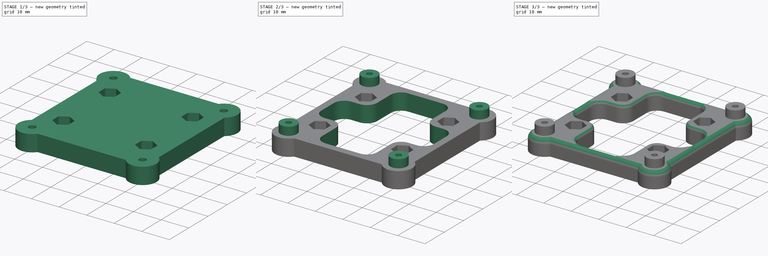
[diagram: build sequence overview — one tinted view per stage of 3, left to right]
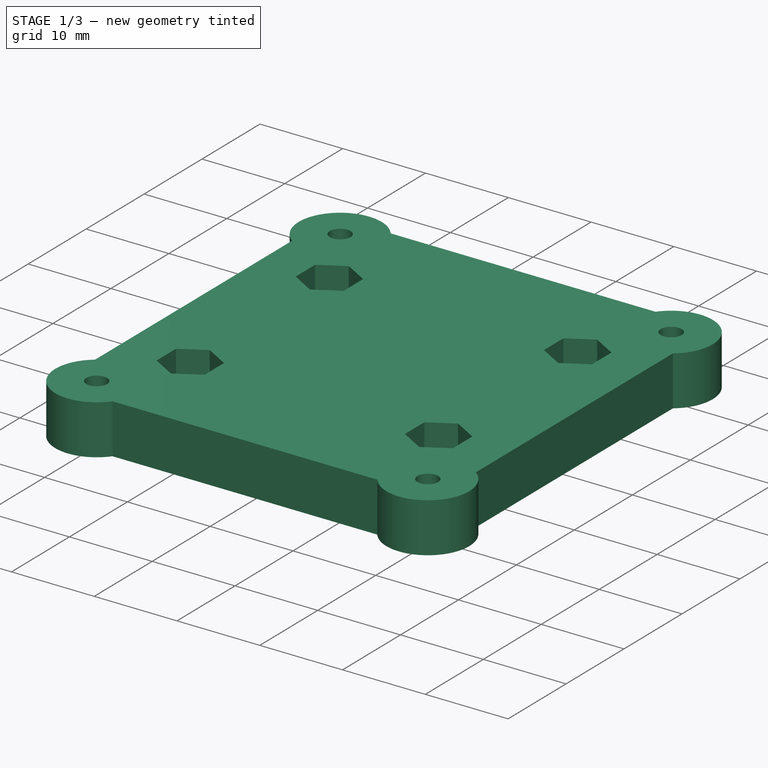
[diagram: stage 1 of 3 — iso view after this stage's code; geometry added in this stage tinted green]
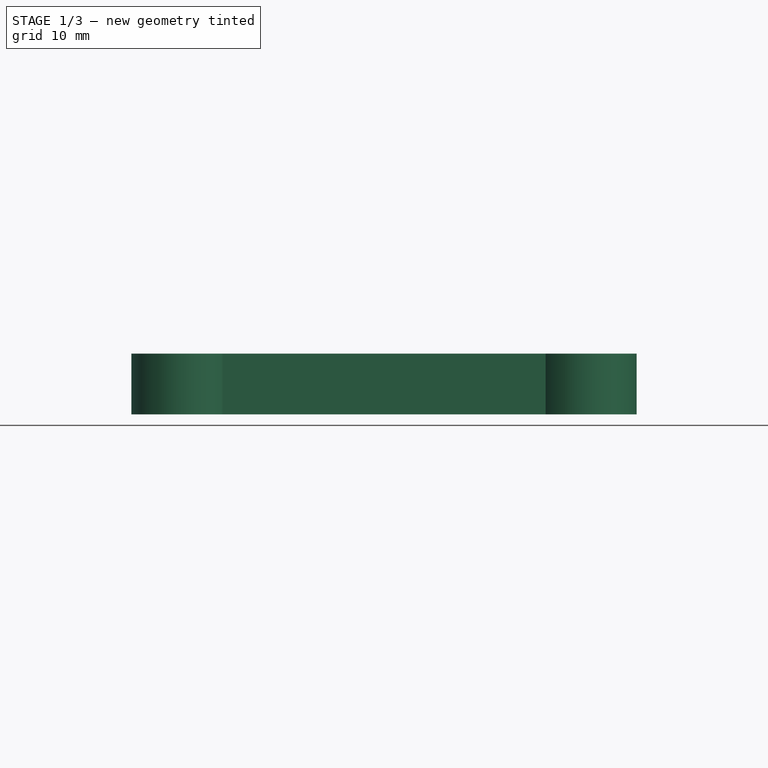
[diagram: stage 1 of 3 — front view after this stage's code; geometry added in this stage tinted green]
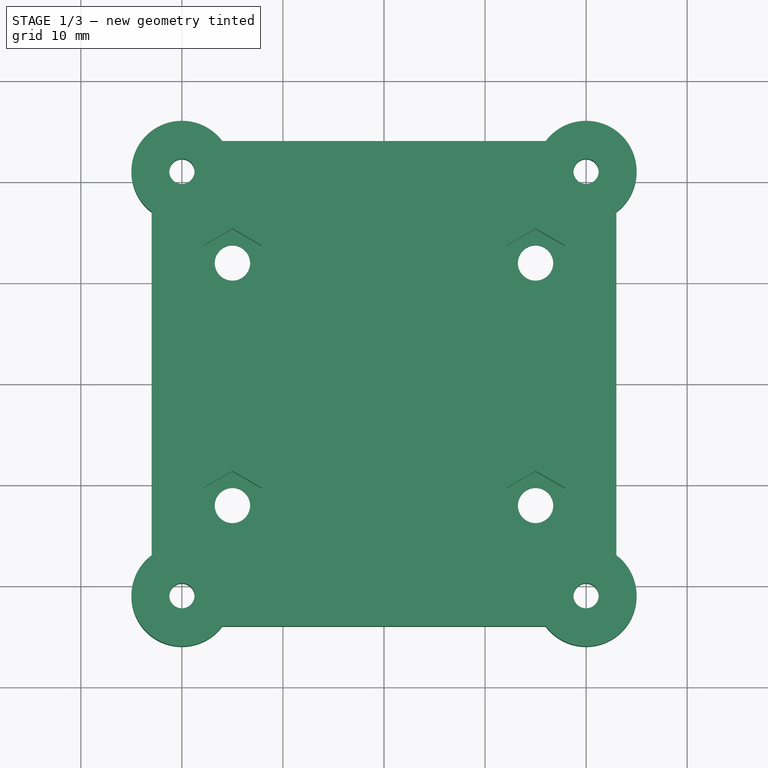
[diagram: stage 1 of 3 — top view after this stage's code; geometry added in this stage tinted green]
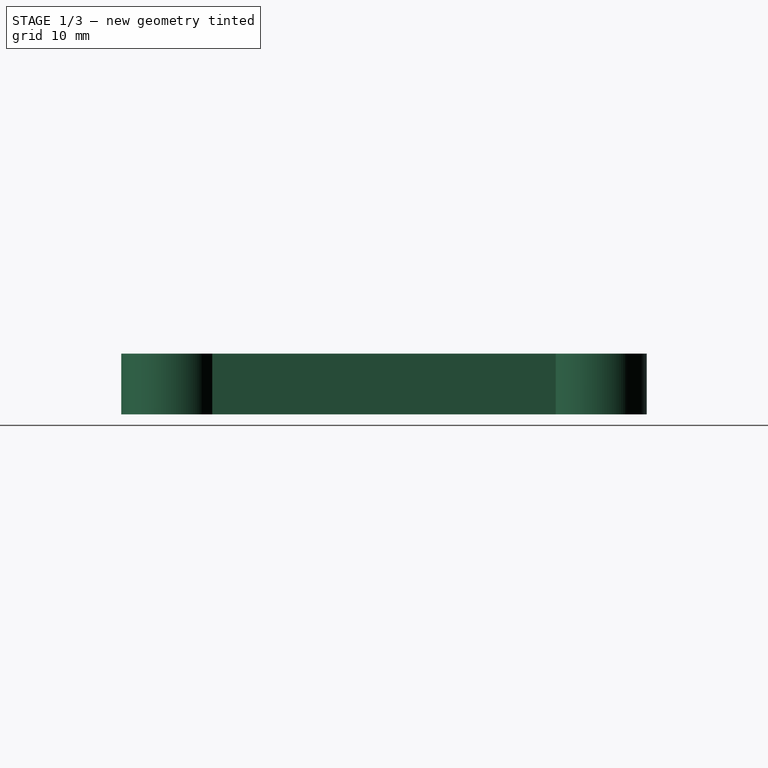
[diagram: stage 1 of 3 — right view after this stage's code; geometry added in this stage tinted green]
FCSTD DOCUMENT  (FreeCAD 0.17R13541 (Git))
Label: OPI-zero_base
License: All rights reserved
LicenseURL: http://en.wikipedia.org/wiki/All_rights_reserved
objects: Sketcher::SketchObject×5, PartDesign::Pocket×3, PartDesign::Pad×2, PartDesign::Fillet×2, PartDesign::Body×1
note: 18 computed .brp shape members not serialized (recipe doc carries the construction recipe); baked Part::Feature solids carry a one-line shape summary decoded from their .brp

FEATURE [Sketcher::SketchObject] Sketch
  MapMode = 5
  Support = -> [XY_Plane]
  sketch-geometry (24):
    g0: LineSegment StartX=-16 StartY=24 StartZ=0 EndX=16 EndY=24 EndZ=0
    g1: LineSegment StartX=23 StartY=17 StartZ=0 EndX=23 EndY=-17 EndZ=0
    g2: Circle CenterX=-20 CenterY=21 CenterZ=0 NormalX=0 NormalY=0 NormalZ=1 AngleXU=0 Radius=1.25
    g3: Circle CenterX=-20 CenterY=-21 CenterZ=0 NormalX=0 NormalY=0 NormalZ=1 AngleXU=0 Radius=1.25
    g4: Circle CenterX=20 CenterY=-21 CenterZ=0 NormalX=0 NormalY=0 NormalZ=1 AngleXU=0 Radius=1.25
    g5: Circle CenterX=20 CenterY=21 CenterZ=0 NormalX=0 NormalY=0 NormalZ=1 AngleXU=0 Radius=1.25
    g6: LineSegment [constr] StartX=-20 StartY=21 StartZ=0 EndX=20 EndY=21 EndZ=0
    g7: LineSegment [constr] StartX=20 StartY=21 StartZ=0 EndX=20 EndY=-21 EndZ=0
    g8: LineSegment [constr] StartX=20 StartY=-21 StartZ=0 EndX=-20 EndY=-21 EndZ=0
    g9: LineSegment [constr] StartX=-20 StartY=-21 StartZ=0 EndX=-20 EndY=21 EndZ=0
    g10: LineSegment [constr] StartX=-15 StartY=12 StartZ=0 EndX=15 EndY=12 EndZ=0
    g11: LineSegment [constr] StartX=15 StartY=12 StartZ=0 EndX=15 EndY=-12 EndZ=0
    g12: LineSegment [constr] StartX=15 StartY=-12 StartZ=0 EndX=-15 EndY=-12 EndZ=0
    g13: LineSegment [constr] StartX=-15 StartY=-12 StartZ=0 EndX=-15 EndY=12 EndZ=0
    g14: Circle CenterX=-15 CenterY=12 CenterZ=0 NormalX=0 NormalY=0 NormalZ=1 AngleXU=0 Radius=1.75
    g15: Circle CenterX=-15 CenterY=-12 CenterZ=0 NormalX=0 NormalY=0 NormalZ=1 AngleXU=0 Radius=1.75
    g16: Circle CenterX=15 CenterY=12 CenterZ=0 NormalX=0 NormalY=0 NormalZ=1 AngleXU=0 Radius=1.75
    g17: Circle CenterX=15 CenterY=-12 CenterZ=0 NormalX=0 NormalY=0 NormalZ=1 AngleXU=0 Radius=1.75
    g18: ArcOfCircle CenterX=-20 CenterY=21 CenterZ=0 NormalX=0 NormalY=0 NormalZ=1 AngleXU=0 Radius=5 StartAngle=0.643501 EndAngle=4.06889
    g19: ArcOfCircle CenterX=20 CenterY=21 CenterZ=0 NormalX=0 NormalY=0 NormalZ=1 AngleXU=0 Radius=5 StartAngle=5.35589 EndAngle=8.78128
    g20: ArcOfCircle CenterX=-20 CenterY=-21 CenterZ=0 NormalX=0 NormalY=0 NormalZ=1 AngleXU=0 Radius=5 StartAngle=2.2143 EndAngle=5.63968
    g21: ArcOfCircle CenterX=20 CenterY=-21 CenterZ=0 NormalX=0 NormalY=0 NormalZ=1 AngleXU=0 Radius=5 StartAngle=3.78509 EndAngle=7.21048
    g22: LineSegment StartX=-23 StartY=-17 StartZ=0 EndX=-23 EndY=17 EndZ=0
    g23: LineSegment StartX=-16 StartY=-24 StartZ=0 EndX=16 EndY=-24 EndZ=0
  constraints (62):
    c: Horizontal(g0)
    c: Vertical(g1)
    c: Coincident(g6,g7)
    c: Coincident(g7,g8)
    c: Coincident(g8,g9)
    c: Coincident(g9,g6)
    c: Vertical(g7)
    c: Coincident(g6,g2)
    c: Coincident(g7,g4)
    c: Coincident(g3,g8)
    c: Coincident(g6,g5)
    c: Equal(g2,g3)
    c: Equal(g3,g4)
    c: Equal(g4,g5)
    c: Radius(g2) = 1.25
    c: Symmetric(g2,g5,g-2)
    c: Symmetric(g2,g3,g-1)
    c: Coincident(g10,g11)
    c: Coincident(g11,g12)
    c: Coincident(g12,g13)
    c: Coincident(g13,g10)
    c: Horizontal(g12)
    c: Vertical(g13)
    c: Coincident(g14,g10)
    c: Coincident(g15,g12)
    c: Coincident(g16,g10)
    c: Coincident(g17,g11)
    c: Equal(g14,g15)
    c: Equal(g15,g17)
    c: Equal(g17,g16)
    c: Symmetric(g10,g11,g-1)
    c: Symmetric(g10,g10,g-2)
    c: DistanceX(g10,g10) = 30
    c: DistanceY(g11,g11) = 24
    c: Radius(g16) = 1.75
    c: Coincident(g19,g5)
    c: Coincident(g20,g3)
    c: Coincident(g21,g4)
    c: Radius(g19) = 5
    c: Coincident(g18,g0)
    c: Coincident(g22,g18)
    c: Coincident(g1,g19)
    c: Coincident(g0,g19)
    c: Coincident(g18,g2)
    c: Vertical(g22)
    c: Coincident(g20,g22)
    c: Coincident(g1,g21)
    c: Equal(g9,g7)
    c: Equal(g13,g11)
    c: Equal(g10,g12)
    c: DistanceX(g20,g1) = 46
    c: DistanceY(g20,g0) = 48
    c: DistanceY(g4,g5) = 42
    c: DistanceX(g2,g5) = 40
    c: Equal(g22,g1)
    c: DistanceX(g20,g-1) = 23
    c: DistanceY(g20,g-1) = 24
    c: Equal(g20,g21)
    c: Equal(g21,g19)
    c: Coincident(g23,g20)
    c: Coincident(g23,g21)
    c: Horizontal(g23)
FEATURE [PartDesign::Pad] Pad
  Length = 6
  Length2 = 100
  Profile = -> Sketch
  Type = 0
FEATURE [Sketcher::SketchObject] Sketch001
  MapMode = 5
  Placement = pos=(0,0,6) rot=(0,0,1;0rad)
  Support = -> [Pad]
  sketch-geometry (32):
    g0: LineSegment StartX=-12.1 StartY=13.6743 StartZ=0 EndX=-15 EndY=15.3486 EndZ=0
    g1: LineSegment StartX=-15 StartY=15.3486 StartZ=0 EndX=-17.9 EndY=13.6743 EndZ=0
    g2: LineSegment StartX=-17.9 StartY=13.6743 StartZ=0 EndX=-17.9 EndY=10.3257 EndZ=0
    g3: LineSegment StartX=-17.9 StartY=10.3257 StartZ=0 EndX=-15 EndY=8.65137 EndZ=0
    g4: LineSegment StartX=-15 StartY=8.65137 StartZ=0 EndX=-12.1 EndY=10.3257 EndZ=0
    g5: LineSegment StartX=-12.1 StartY=10.3257 StartZ=0 EndX=-12.1 EndY=13.6743 EndZ=0
    g6: Circle [constr] CenterX=-15 CenterY=12 CenterZ=0 NormalX=0 NormalY=0 NormalZ=1 AngleXU=0 Radius=3.34863
    g7: LineSegment StartX=17.9 StartY=13.6743 StartZ=0 EndX=15 EndY=15.3486 EndZ=0
    g8: LineSegment StartX=15 StartY=15.3486 StartZ=0 EndX=12.1 EndY=13.6743 EndZ=0
    g9: LineSegment StartX=12.1 StartY=13.6743 StartZ=0 EndX=12.1 EndY=10.3257 EndZ=0
    g10: LineSegment StartX=12.1 StartY=10.3257 StartZ=0 EndX=15 EndY=8.65137 EndZ=0
    g11: LineSegment StartX=15 StartY=8.65137 StartZ=0 EndX=17.9 EndY=10.3257 EndZ=0
    g12: LineSegment StartX=17.9 StartY=10.3257 StartZ=0 EndX=17.9 EndY=13.6743 EndZ=0
    g13: Circle [constr] CenterX=15 CenterY=12 CenterZ=0 NormalX=0 NormalY=0 NormalZ=1 AngleXU=0 Radius=3.34863
    g14: LineSegment StartX=-12.1 StartY=-10.3257 StartZ=0 EndX=-15 EndY=-8.65137 EndZ=0
    g15: LineSegment StartX=-15 StartY=-8.65137 StartZ=0 EndX=-17.9 EndY=-10.3257 EndZ=0
    g16: LineSegment StartX=-17.9 StartY=-10.3257 StartZ=0 EndX=-17.9 EndY=-13.6743 EndZ=0
    g17: LineSegment StartX=-17.9 StartY=-13.6743 StartZ=0 EndX=-15 EndY=-15.3486 EndZ=0
    g18: LineSegment StartX=-15 StartY=-15.3486 StartZ=0 EndX=-12.1 EndY=-13.6743 EndZ=0
    g19: LineSegment StartX=-12.1 StartY=-13.6743 StartZ=0 EndX=-12.1 EndY=-10.3257 EndZ=0
    g20: Circle [constr] CenterX=-15 CenterY=-12 CenterZ=0 NormalX=0 NormalY=0 NormalZ=1 AngleXU=0 Radius=3.34863
    g21: LineSegment StartX=17.9 StartY=-10.3257 StartZ=0 EndX=15 EndY=-8.65137 EndZ=0
    g22: LineSegment StartX=15 StartY=-8.65137 StartZ=0 EndX=12.1 EndY=-10.3257 EndZ=0
    g23: LineSegment StartX=12.1 StartY=-10.3257 StartZ=0 EndX=12.1 EndY=-13.6743 EndZ=0
    g24: LineSegment StartX=12.1 StartY=-13.6743 StartZ=0 EndX=15 EndY=-15.3486 EndZ=0
    g25: LineSegment StartX=15 StartY=-15.3486 StartZ=0 EndX=17.9 EndY=-13.6743 EndZ=0
    g26: LineSegment StartX=17.9 StartY=-13.6743 StartZ=0 EndX=17.9 EndY=-10.3257 EndZ=0
    g27: Circle [constr] CenterX=15 CenterY=-12 CenterZ=0 NormalX=0 NormalY=0 NormalZ=1 AngleXU=0 Radius=3.34863
    g28: LineSegment [constr] StartX=-15 StartY=12 StartZ=0 EndX=15 EndY=12 EndZ=0
    g29: LineSegment [constr] StartX=15 StartY=12 StartZ=0 EndX=15 EndY=-12 EndZ=0
    g30: LineSegment [constr] StartX=15 StartY=-12 StartZ=0 EndX=-15 EndY=-12 EndZ=0
    g31: LineSegment [constr] StartX=-15 StartY=-12 StartZ=0 EndX=-15 EndY=12 EndZ=0
  constraints (76):
    c: Coincident(g0,g1)
    c: Coincident(g1,g2)
    c: Coincident(g2,g3)
    c: Coincident(g3,g4)
    c: Coincident(g4,g5)
    c: Coincident(g5,g0)
    c: Equal(g0, g1-g5) x5
    c: PointOnObject(g0,g6)
    c: PointOnObject(g1,g6)
    c: PointOnObject(g2,g6)
    c: PointOnObject(g3,g6)
    c: PointOnObject(g4,g6)
    c: PointOnObject(g5,g6)
    c: Coincident(g7,g8)
    c: Coincident(g8,g9)
    c: Coincident(g9,g10)
    c: Coincident(g10,g11)
    c: Coincident(g11,g12)
    c: Coincident(g12,g7)
    c: Equal(g7, g8-g12) x5
    c: PointOnObject(g7,g13)
    c: PointOnObject(g8,g13)
    c: PointOnObject(g9,g13)
    c: PointOnObject(g10,g13)
    c: PointOnObject(g11,g13)
    c: PointOnObject(g12,g13)
    c: Coincident(g14,g15)
    c: Coincident(g15,g16)
    c: Coincident(g16,g17)
    c: Coincident(g17,g18)
    c: Coincident(g18,g19)
    c: Coincident(g19,g14)
    c: Equal(g14, g15-g19) x5
    c: PointOnObject(g14,g20)
    c: PointOnObject(g15,g20)
    c: PointOnObject(g16,g20)
    c: PointOnObject(g17,g20)
    c: PointOnObject(g18,g20)
    c: PointOnObject(g19,g20)
    c: Coincident(g21,g22)
    c: Coincident(g22,g23)
    c: Coincident(g23,g24)
    c: Coincident(g24,g25)
    c: Coincident(g25,g26)
    c: Coincident(g26,g21)
    c: Equal(g21, g22-g26) x5
    c: PointOnObject(g21,g27)
    c: PointOnObject(g22,g27)
    c: PointOnObject(g23,g27)
    c: PointOnObject(g24,g27)
    c: PointOnObject(g25,g27)
    c: PointOnObject(g26,g27)
    c: Equal(g20,g6)
    c: Equal(g6,g13)
    c: Equal(g13,g27)
    c: Coincident(g28,g29)
    c: Coincident(g29,g30)
    c: Coincident(g30,g31)
    c: Coincident(g31,g28)
    c: Horizontal(g28)
    c: Horizontal(g30)
    c: Vertical(g29)
    c: Vertical(g31)
    c: Coincident(g28,g6)
    c: Coincident(g29,g27)
    c: Coincident(g20,g30)
    c: Coincident(g13,g28)
    c: DistanceX(g28,g28) = 30
    c: DistanceY(g29,g29) = 24
    c: Symmetric(g27,g13,g-1)
    c: Symmetric(g6,g13,g-2)
    c: Vertical(g19)
    c: Vertical(g26)
    c: Vertical(g12)
    c: Vertical(g5)
    c: DistanceX(g9,g11) = 5.8
FEATURE [PartDesign::Pocket] Pocket
  BaseFeature = -> Pad
  Length = 4
  Length2 = 100
  Profile = -> Sketch001
  Type = 0
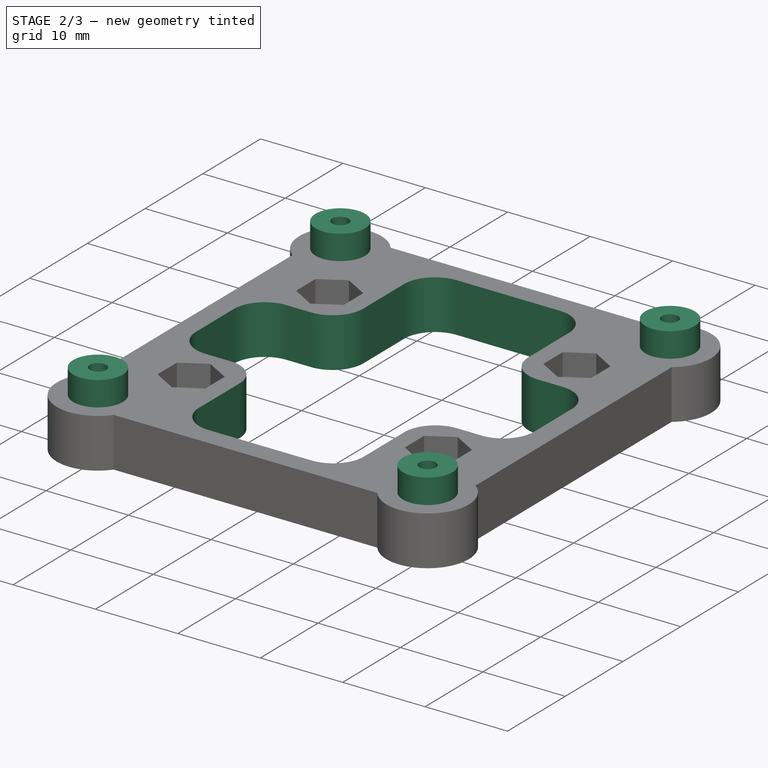
[diagram: stage 2 of 3 — iso view after this stage's code; geometry added in this stage tinted green]
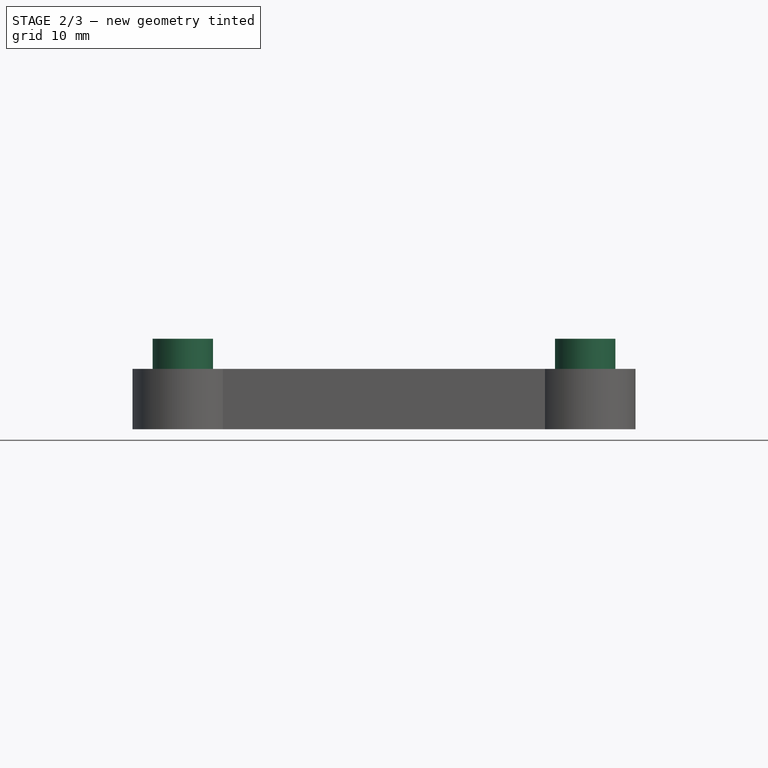
[diagram: stage 2 of 3 — front view after this stage's code; geometry added in this stage tinted green]
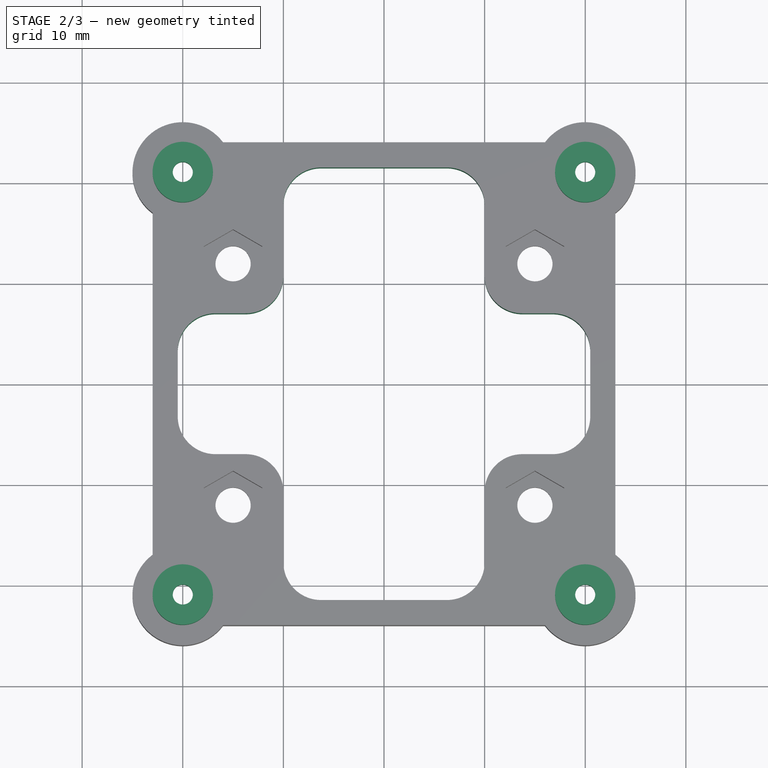
[diagram: stage 2 of 3 — top view after this stage's code; geometry added in this stage tinted green]
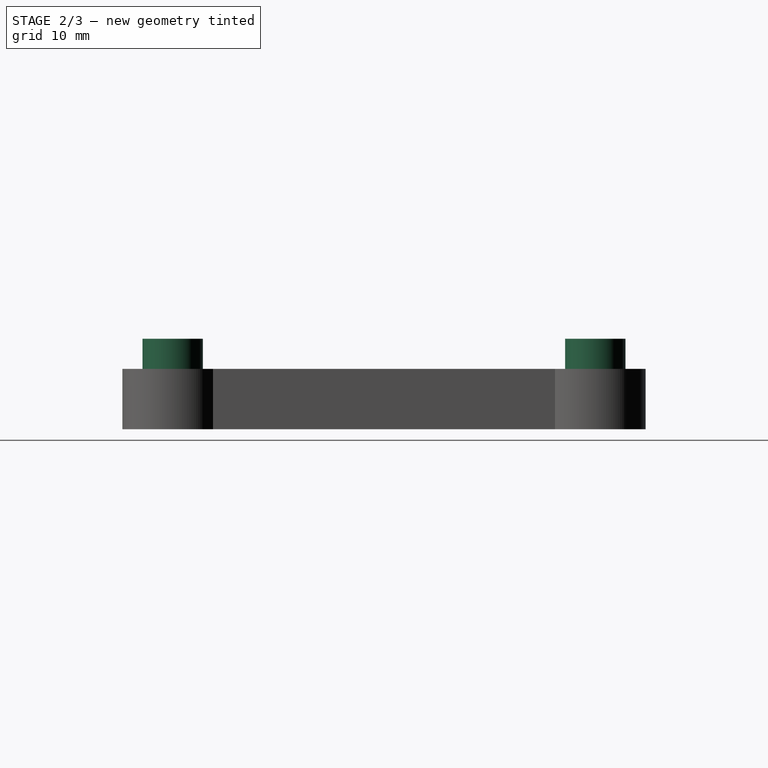
[diagram: stage 2 of 3 — right view after this stage's code; geometry added in this stage tinted green]
FEATURE [Sketcher::SketchObject] Sketch002
  MapMode = 5
  Placement = pos=(0,0,0) rot=(1,0,0;3.14159rad)
  Support = -> [Pocket]
  sketch-geometry (32):
    g0: LineSegment [constr] StartX=-20 StartY=21 StartZ=0 EndX=20 EndY=21 EndZ=0
    g1: LineSegment [constr] StartX=20 StartY=21 StartZ=0 EndX=20 EndY=-21 EndZ=0
    g2: LineSegment [constr] StartX=20 StartY=-21 StartZ=0 EndX=-20 EndY=-21 EndZ=0
    g3: LineSegment [constr] StartX=-20 StartY=-21 StartZ=0 EndX=-20 EndY=21 EndZ=0
    g4: LineSegment StartX=-22.9 StartY=19.3257 StartZ=0 EndX=-20 EndY=17.6514 EndZ=0
    g5: LineSegment StartX=-20 StartY=17.6514 StartZ=0 EndX=-17.1 EndY=19.3257 EndZ=0
    g6: LineSegment StartX=-17.1 StartY=19.3257 StartZ=0 EndX=-17.1 EndY=22.6743 EndZ=0
    g7: LineSegment StartX=-17.1 StartY=22.6743 StartZ=0 EndX=-20 EndY=24.3486 EndZ=0
    g8: LineSegment StartX=-20 StartY=24.3486 StartZ=0 EndX=-22.9 EndY=22.6743 EndZ=0
    g9: LineSegment StartX=-22.9 StartY=22.6743 StartZ=0 EndX=-22.9 EndY=19.3257 EndZ=0
    g10: Circle [constr] CenterX=-20 CenterY=21 CenterZ=0 NormalX=0 NormalY=0 NormalZ=1 AngleXU=0 Radius=3.34863
    g11: LineSegment StartX=20 StartY=17.6514 StartZ=0 EndX=22.9 EndY=19.3257 EndZ=0
    g12: LineSegment StartX=22.9 StartY=19.3257 StartZ=0 EndX=22.9 EndY=22.6743 EndZ=0
    g13: LineSegment StartX=22.9 StartY=22.6743 StartZ=0 EndX=20 EndY=24.3486 EndZ=0
    g14: LineSegment StartX=20 StartY=24.3486 StartZ=0 EndX=17.1 EndY=22.6743 EndZ=0
    g15: LineSegment StartX=17.1 StartY=22.6743 StartZ=0 EndX=17.1 EndY=19.3257 EndZ=0
    g16: LineSegment StartX=17.1 StartY=19.3257 StartZ=0 EndX=20 EndY=17.6514 EndZ=0
    g17: Circle [constr] CenterX=20 CenterY=21 CenterZ=0 NormalX=0 NormalY=0 NormalZ=1 AngleXU=0 Radius=3.34863
    g18: LineSegment StartX=20 StartY=-24.3486 StartZ=0 EndX=22.9 EndY=-22.6743 EndZ=0
    g19: LineSegment StartX=22.9 StartY=-22.6743 StartZ=0 EndX=22.9 EndY=-19.3257 EndZ=0
    g20: LineSegment StartX=22.9 StartY=-19.3257 StartZ=0 EndX=20 EndY=-17.6514 EndZ=0
    g21: LineSegment StartX=20 StartY=-17.6514 StartZ=0 EndX=17.1 EndY=-19.3257 EndZ=0
    g22: LineSegment StartX=17.1 StartY=-19.3257 StartZ=0 EndX=17.1 EndY=-22.6743 EndZ=0
    g23: LineSegment StartX=17.1 StartY=-22.6743 StartZ=0 EndX=20 EndY=-24.3486 EndZ=0
    g24: Circle [constr] CenterX=20 CenterY=-21 CenterZ=0 NormalX=0 NormalY=0 NormalZ=1 AngleXU=0 Radius=3.34863
    g25: LineSegment StartX=-20 StartY=-24.3486 StartZ=0 EndX=-17.1 EndY=-22.6743 EndZ=0
    g26: LineSegment StartX=-17.1 StartY=-22.6743 StartZ=0 EndX=-17.1 EndY=-19.3257 EndZ=0
    g27: LineSegment StartX=-17.1 StartY=-19.3257 StartZ=0 EndX=-20 EndY=-17.6514 EndZ=0
    g28: LineSegment StartX=-20 StartY=-17.6514 StartZ=0 EndX=-22.9 EndY=-19.3257 EndZ=0
    g29: LineSegment StartX=-22.9 StartY=-19.3257 StartZ=0 EndX=-22.9 EndY=-22.6743 EndZ=0
    g30: LineSegment StartX=-22.9 StartY=-22.6743 StartZ=0 EndX=-20 EndY=-24.3486 EndZ=0
    g31: Circle [constr] CenterX=-20 CenterY=-21 CenterZ=0 NormalX=0 NormalY=0 NormalZ=1 AngleXU=0 Radius=3.34863
  constraints (76):
    c: Coincident(g0,g1)
    c: Coincident(g1,g2)
    c: Coincident(g2,g3)
    c: Coincident(g3,g0)
    c: Horizontal(g0)
    c: Horizontal(g2)
    c: Vertical(g1)
    c: Vertical(g3)
    c: Symmetric(g0,g0,g-2)
    c: Symmetric(g2,g0,g-1)
    c: Coincident(g4,g5)
    c: Coincident(g5,g6)
    c: Coincident(g6,g7)
    c: Coincident(g7,g8)
    c: Coincident(g8,g9)
    c: Coincident(g9,g4)
    c: Equal(g4, g5-g9) x5
    c: PointOnObject(g4,g10)
    c: PointOnObject(g5,g10)
    c: PointOnObject(g6,g10)
    c: PointOnObject(g7,g10)
    c: PointOnObject(g8,g10)
    c: PointOnObject(g9,g10)
    c: Coincident(g10,g0)
    c: Coincident(g11,g12)
    c: Coincident(g12,g13)
    c: Coincident(g13,g14)
    c: Coincident(g14,g15)
    c: Coincident(g15,g16)
    c: Coincident(g16,g11)
    c: Equal(g11, g12-g16) x5
    c: PointOnObject(g11,g17)
    c: PointOnObject(g12,g17)
    c: PointOnObject(g13,g17)
    c: PointOnObject(g14,g17)
    c: PointOnObject(g15,g17)
    c: PointOnObject(g16,g17)
    c: Coincident(g17,g0)
    c: Coincident(g18,g19)
    c: Coincident(g19,g20)
    c: Coincident(g20,g21)
    c: Coincident(g21,g22)
    c: Coincident(g22,g23)
    c: Coincident(g23,g18)
    c: Equal(g18, g19-g23) x5
    c: PointOnObject(g18,g24)
    c: PointOnObject(g19,g24)
    c: PointOnObject(g20,g24)
    c: PointOnObject(g21,g24)
    c: PointOnObject(g22,g24)
    c: PointOnObject(g23,g24)
    c: Coincident(g24,g1)
    c: Coincident(g25,g26)
    c: Coincident(g26,g27)
    c: Coincident(g27,g28)
    c: Coincident(g28,g29)
    c: Coincident(g29,g30)
    c: Coincident(g30,g25)
    c: Equal(g25, g26-g30) x5
    c: PointOnObject(g25,g31)
    c: PointOnObject(g26,g31)
    c: PointOnObject(g27,g31)
    c: PointOnObject(g28,g31)
    c: PointOnObject(g29,g31)
    c: PointOnObject(g30,g31)
    c: Coincident(g31,g2)
    c: Equal(g31,g24)
    c: Equal(g24,g17)
    c: Equal(g17,g10)
    c: DistanceY(g1,g1) = 42
    c: Vertical(g6)
    c: Vertical(g12)
    c: Vertical(g19)
    c: Vertical(g26)
    c: DistanceX(g14,g12) = 5.8
    c: DistanceX(g0,g0) = 40
FEATURE [PartDesign::Pocket] Pocket001
  BaseFeature = -> Pocket
  Length = 4
  Length2 = 100
  Profile = -> Sketch002
  Type = 0
FEATURE [Sketcher::SketchObject] Sketch003
  MapMode = 5
  Placement = pos=(0,0,6) rot=(0,0,1;0rad)
  Support = -> [Pocket001]
  sketch-geometry (24):
    g0: LineSegment StartX=-16.75 StartY=7 StartZ=0 EndX=-13.75 EndY=7 EndZ=0
    g1: LineSegment StartX=20.5 StartY=3.25 StartZ=0 EndX=20.5 EndY=-3.25 EndZ=0
    g2: LineSegment StartX=16.75 StartY=-7 StartZ=0 EndX=13.75 EndY=-7 EndZ=0
    g3: LineSegment StartX=-20.5 StartY=-3.25 StartZ=0 EndX=-20.5 EndY=3.25 EndZ=0
    g4: LineSegment StartX=-6.25 StartY=21.5 StartZ=0 EndX=6.25 EndY=21.5 EndZ=0
    g5: LineSegment StartX=10 StartY=17.75 StartZ=0 EndX=10 EndY=10.75 EndZ=0
    g6: LineSegment StartX=6.25 StartY=-21.5 StartZ=0 EndX=-6.25 EndY=-21.5 EndZ=0
    g7: LineSegment StartX=-10 StartY=-17.75 StartZ=0 EndX=-10 EndY=-10.75 EndZ=0
    g8: LineSegment StartX=-10 StartY=10.75 StartZ=0 EndX=-10 EndY=17.75 EndZ=0
    g9: LineSegment StartX=13.75 StartY=7 StartZ=0 EndX=16.75 EndY=7 EndZ=0
    g10: LineSegment StartX=10 StartY=-10.75 StartZ=0 EndX=10 EndY=-17.75 EndZ=0
    g11: LineSegment StartX=-13.75 StartY=-7 StartZ=0 EndX=-16.75 EndY=-7 EndZ=0
    g12: ArcOfCircle CenterX=-13.75 CenterY=-10.75 CenterZ=0 NormalX=0 NormalY=0 NormalZ=1 AngleXU=0 Radius=3.75 StartAngle=0 EndAngle=1.5708
    g13: ArcOfCircle CenterX=-6.25 CenterY=-17.75 CenterZ=0 NormalX=0 NormalY=0 NormalZ=1 AngleXU=0 Radius=3.75 StartAngle=3.14159 EndAngle=4.71239
    g14: ArcOfCircle CenterX=6.25 CenterY=-17.75 CenterZ=0 NormalX=0 NormalY=0 NormalZ=1 AngleXU=0 Radius=3.75 StartAngle=4.71239 EndAngle=6.28319
    g15: ArcOfCircle CenterX=13.75 CenterY=-10.75 CenterZ=0 NormalX=0 NormalY=0 NormalZ=1 AngleXU=0 Radius=3.75 StartAngle=1.5708 EndAngle=3.14159
    g16: ArcOfCircle CenterX=16.75 CenterY=-3.25 CenterZ=0 NormalX=0 NormalY=0 NormalZ=1 AngleXU=0 Radius=3.75 StartAngle=4.71239 EndAngle=6.28319
    g17: ArcOfCircle CenterX=16.75 CenterY=3.25 CenterZ=0 NormalX=0 NormalY=0 NormalZ=1 AngleXU=0 Radius=3.75 StartAngle=-3e-12 EndAngle=1.5708
    g18: ArcOfCircle CenterX=13.75 CenterY=10.75 CenterZ=0 NormalX=0 NormalY=0 NormalZ=1 AngleXU=0 Radius=3.75 StartAngle=3.14159 EndAngle=4.71239
    g19: ArcOfCircle CenterX=6.25 CenterY=17.75 CenterZ=0 NormalX=0 NormalY=0 NormalZ=1 AngleXU=0 Radius=3.75 StartAngle=0 EndAngle=1.5708
    g20: ArcOfCircle CenterX=-6.25 CenterY=17.75 CenterZ=0 NormalX=0 NormalY=0 NormalZ=1 AngleXU=0 Radius=3.75 StartAngle=1.5708 EndAngle=3.14159
    g21: ArcOfCircle CenterX=-13.75 CenterY=10.75 CenterZ=0 NormalX=0 NormalY=0 NormalZ=1 AngleXU=0 Radius=3.75 StartAngle=4.71239 EndAngle=6.28319
    g22: ArcOfCircle CenterX=-16.75 CenterY=3.25 CenterZ=0 NormalX=0 NormalY=0 NormalZ=1 AngleXU=0 Radius=3.75 StartAngle=1.5708 EndAngle=3.14159
    g23: ArcOfCircle CenterX=-16.75 CenterY=-3.25 CenterZ=0 NormalX=0 NormalY=0 NormalZ=1 AngleXU=0 Radius=3.75 StartAngle=3.14159 EndAngle=4.71239
  constraints (57):
    c: Horizontal(g0)
    c: Horizontal(g2)
    c: Vertical(g5)
    c: Tangent(g7,g8)
    c: Tangent(g0,g9)
    c: Tangent(g5,g10)
    c: Tangent(g2,g11)
    c: Tangent(g11,g12) = -1.5708
    c: Tangent(g7,g12) = -1.5708
    c: Tangent(g7,g13) = 1.5708
    c: Tangent(g6,g13) = 1.5708
    c: Tangent(g6,g14) = 1.5708
    c: Tangent(g10,g14) = 1.5708
    c: Tangent(g10,g15) = -1.5708
    c: Tangent(g2,g15) = -1.5708
    c: Tangent(g2,g16) = 1.5708
    c: Tangent(g1,g16) = 1.5708
    c: Tangent(g1,g17) = 1.5708
    c: Tangent(g9,g17) = 1.5708
    c: Tangent(g9,g18) = -1.5708
    c: Tangent(g5,g18) = -1.5708
    c: Tangent(g4,g19) = 1.5708
    c: Tangent(g5,g19) = 1.5708
    c: Tangent(g4,g20) = 1.5708
    c: Tangent(g8,g20) = 1.5708
    c: Tangent(g8,g21) = -1.5708
    c: Tangent(g0,g21) = -1.5708
    c: Tangent(g0,g22) = 1.5708
    c: Tangent(g3,g22) = 1.5708
    c: Tangent(g3,g23) = 1.5708
    c: Tangent(g11,g23) = 1.5708
    c: Equal(g13,g14)
    c: Equal(g14,g15)
    c: Equal(g15,g16)
    c: Equal(g17,g18)
    c: Equal(g18,g19)
    c: Equal(g20,g21)
    c: Equal(g21,g22)
    c: Equal(g22,g23)
    c: Equal(g23,g12)
    c: Symmetric(g1,g1,g-1)
    c: Symmetric(g4,g4,g-2)
    c: DistanceX(g3,g1) = 41
    c: Symmetric(g6,g6,g-2)
    c: Symmetric(g3,g3,g-1)
    c: Equal(g3,g1)
    c: Equal(g4,g6)
    c: Equal(g7,g8)
    c: Equal(g8,g5)
    c: Equal(g5,g10)
    c: Equal(g0,g11)
    c: Equal(g11,g2)
    c: Equal(g2,g9)
    c: DistanceY(g6,g4) = 43
    c: DistanceX(g8,g5) = 20
    c: DistanceX(g0,g0) = 3
    c: DistanceY(g11,g0) = 14
FEATURE [PartDesign::Pocket] Pocket002
  BaseFeature = -> Pocket001
  Length = 5
  Length2 = 100
  Profile = -> Sketch003
  Type = 1
FEATURE [Sketcher::SketchObject] Sketch004
  MapMode = 5
  Placement = pos=(0,0,6) rot=(0,0,1;0rad)
  Support = -> [Pocket002]
  sketch-geometry (12):
    g0: LineSegment [constr] StartX=-20 StartY=21 StartZ=0 EndX=20 EndY=21 EndZ=0
    g1: LineSegment [constr] StartX=20 StartY=21 StartZ=0 EndX=20 EndY=-21 EndZ=0
    g2: LineSegment [constr] StartX=20 StartY=-21 StartZ=0 EndX=-20 EndY=-21 EndZ=0
    g3: LineSegment [constr] StartX=-20 StartY=-21 StartZ=0 EndX=-20 EndY=21 EndZ=0
    g4: Circle CenterX=-20 CenterY=21 CenterZ=0 NormalX=0 NormalY=0 NormalZ=1 AngleXU=0 Radius=3
    g5: Circle CenterX=-20 CenterY=-21 CenterZ=0 NormalX=0 NormalY=0 NormalZ=1 AngleXU=0 Radius=3
    g6: Circle CenterX=20 CenterY=-21 CenterZ=0 NormalX=0 NormalY=0 NormalZ=1 AngleXU=0 Radius=3
    g7: Circle CenterX=20 CenterY=21 CenterZ=0 NormalX=0 NormalY=0 NormalZ=1 AngleXU=0 Radius=3
    g8: Circle CenterX=-20 CenterY=21 CenterZ=0 NormalX=0 NormalY=0 NormalZ=1 AngleXU=0 Radius=1
    g9: Circle CenterX=20 CenterY=21 CenterZ=0 NormalX=0 NormalY=0 NormalZ=1 AngleXU=0 Radius=1
    g10: Circle CenterX=20 CenterY=-21 CenterZ=0 NormalX=0 NormalY=0 NormalZ=1 AngleXU=0 Radius=1
    g11: Circle CenterX=-20 CenterY=-21 CenterZ=0 NormalX=0 NormalY=0 NormalZ=1 AngleXU=0 Radius=1
  constraints (28):
    c: Coincident(g0,g1)
    c: Coincident(g1,g2)
    c: Coincident(g2,g3)
    c: Coincident(g3,g0)
    c: Horizontal(g0)
    c: Horizontal(g2)
    c: Vertical(g1)
    c: Vertical(g3)
    c: Symmetric(g0,g0,g-2)
    c: Symmetric(g0,g2,g-1)
    c: Coincident(g4,g0)
    c: Coincident(g5,g2)
    c: Coincident(g6,g1)
    c: Coincident(g7,g0)
    c: DistanceY(g1,g1) = 42
    c: Equal(g5,g4)
    c: Equal(g4,g7)
    c: Equal(g7,g6)
    c: Radius(g7) = 3
    c: Coincident(g8,g0)
    c: Coincident(g9,g0)
    c: Coincident(g10,g1)
    c: Coincident(g11,g2)
    c: Equal(g8,g11)
    c: Equal(g11,g10)
    c: Equal(g10,g9)
    c: Radius(g9) = 1
    c: DistanceX(g0,g0) = 40
FEATURE [PartDesign::Pad] Pad001
  BaseFeature = -> Pocket002
  Length = 3
  Length2 = 100
  Profile = -> Sketch004
  Type = 0
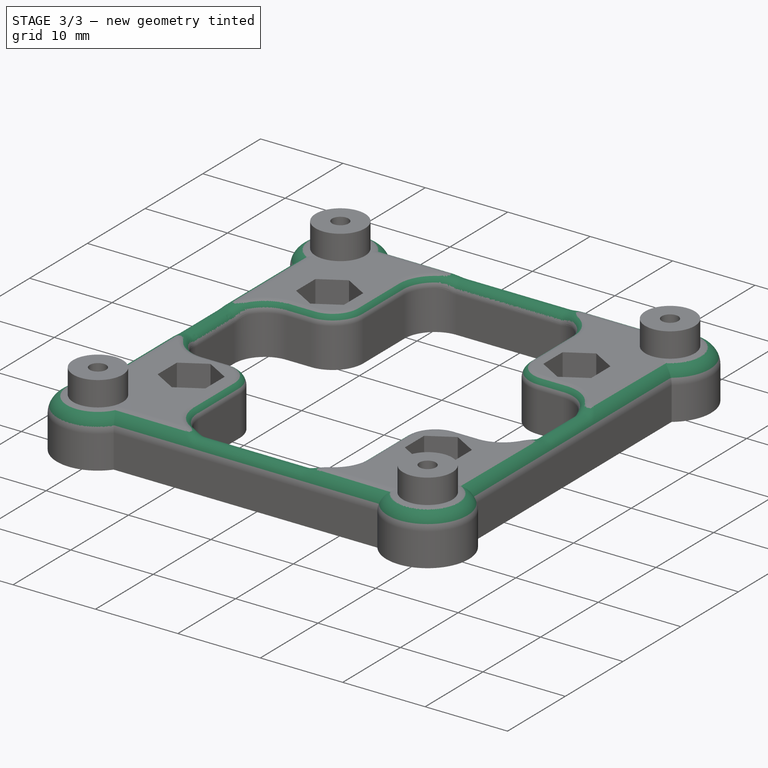
[diagram: stage 3 of 3 — iso view after this stage's code; geometry added in this stage tinted green]
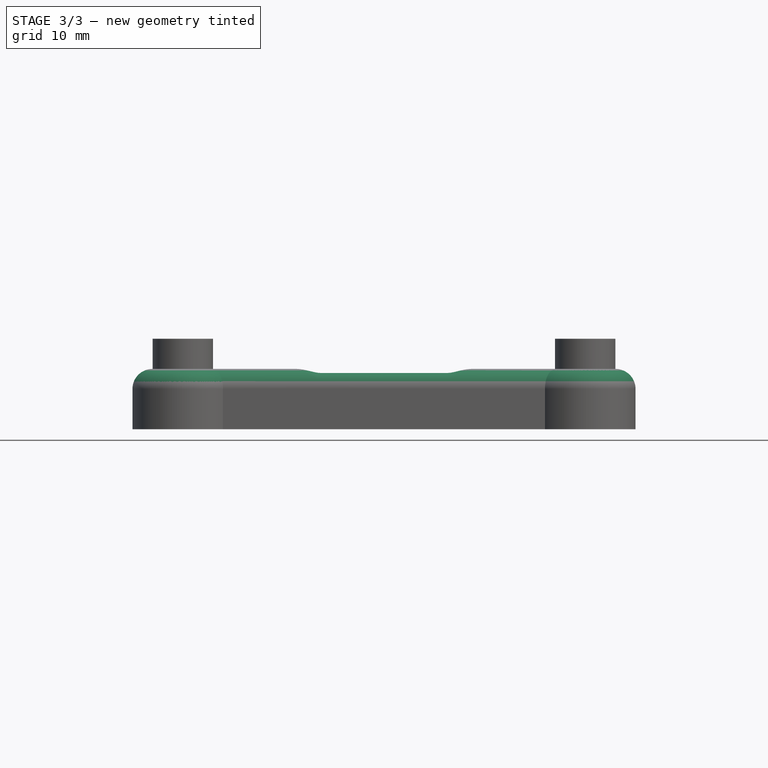
[diagram: stage 3 of 3 — front view after this stage's code; geometry added in this stage tinted green]
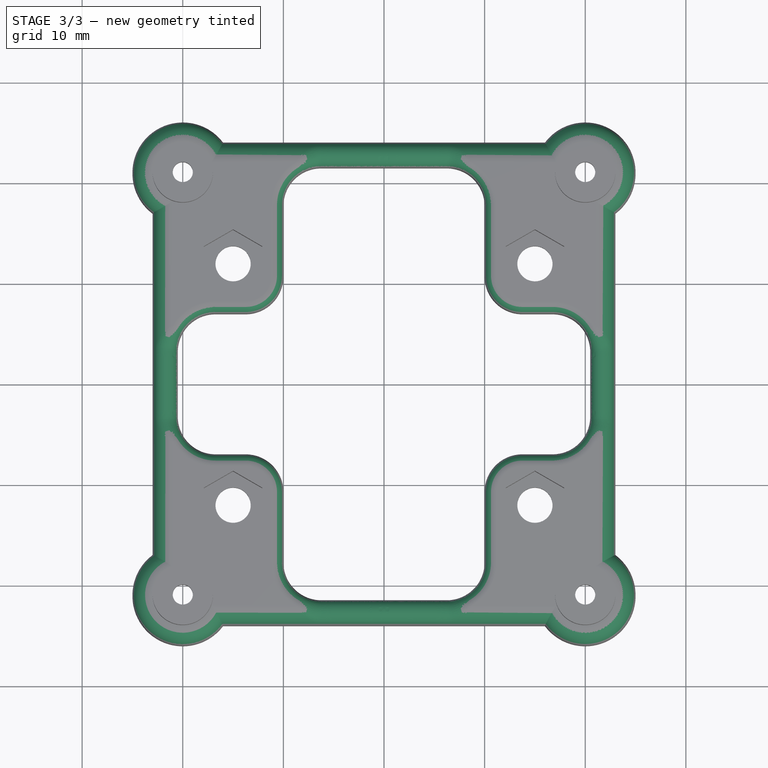
[diagram: stage 3 of 3 — top view after this stage's code; geometry added in this stage tinted green]
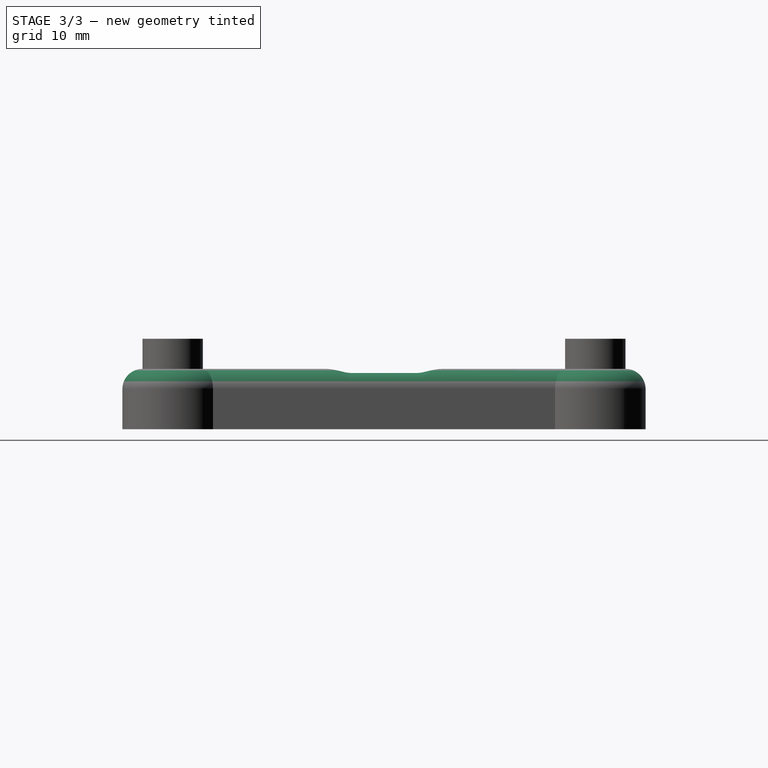
[diagram: stage 3 of 3 — right view after this stage's code; geometry added in this stage tinted green]
FEATURE [PartDesign::Fillet] Fillet
  Base = -> Pad001 [Edge4,Edge7,Edge68,Edge70,Edge72,Edge71,Edge69,Edge10]
  BaseFeature = -> Pad001
  Radius = 1.99
FEATURE [PartDesign::Fillet] Fillet001
  Base = -> Fillet [Edge103]
  BaseFeature = -> Fillet
  Radius = 1.2
FEATURE [PartDesign::Body] Body
  Group = -> [Sketch,Pad,Sketch001,Pocket,Sketch002,Pocket001,Sketch003,Pocket002,Sketch004,Pad001,Fillet,Fillet001]
  Origin = -> Origin
  Tip = -> Fillet001
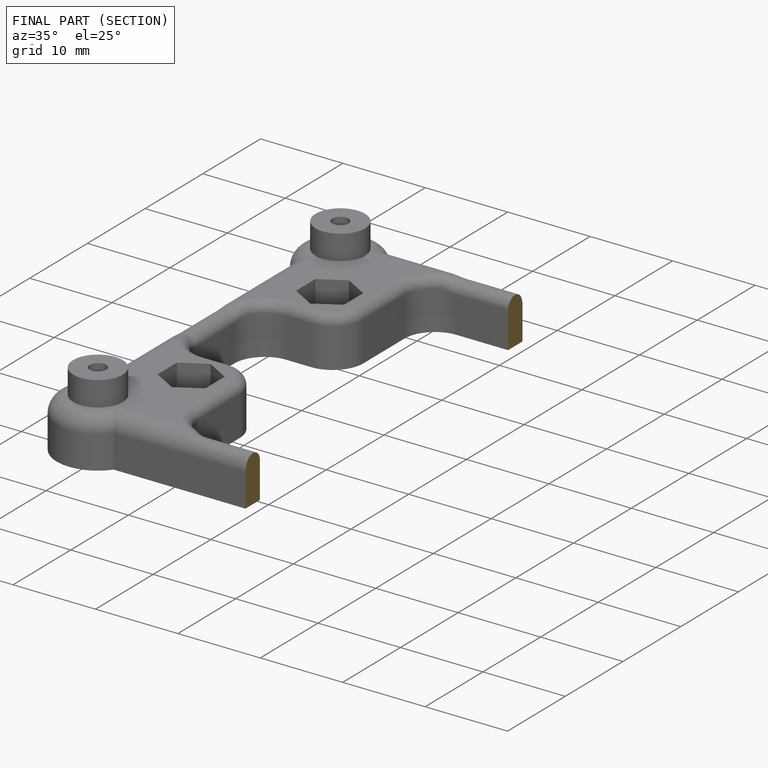
[diagram: finished part — half-section view (interior)]
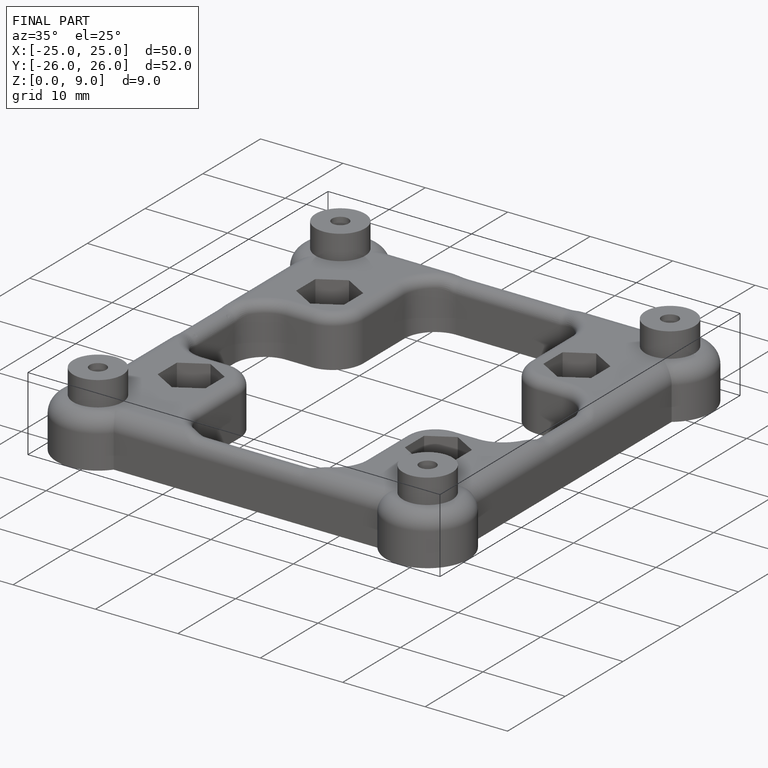
[diagram: finished part — iso view with bounding-box wireframe]
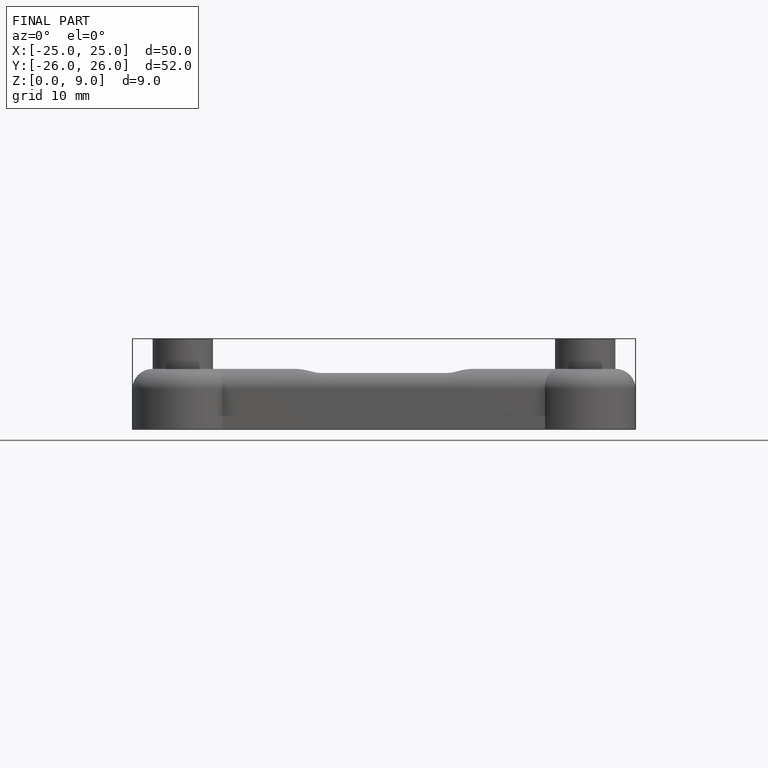
[diagram: finished part — front view with bounding-box wireframe]
